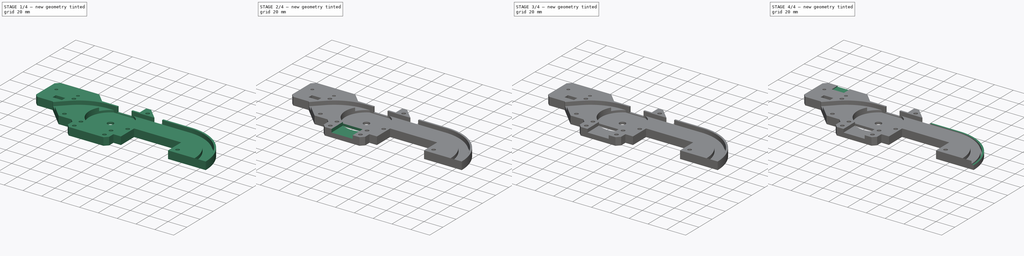
[diagram: build sequence overview — one tinted view per stage of 4, left to right]
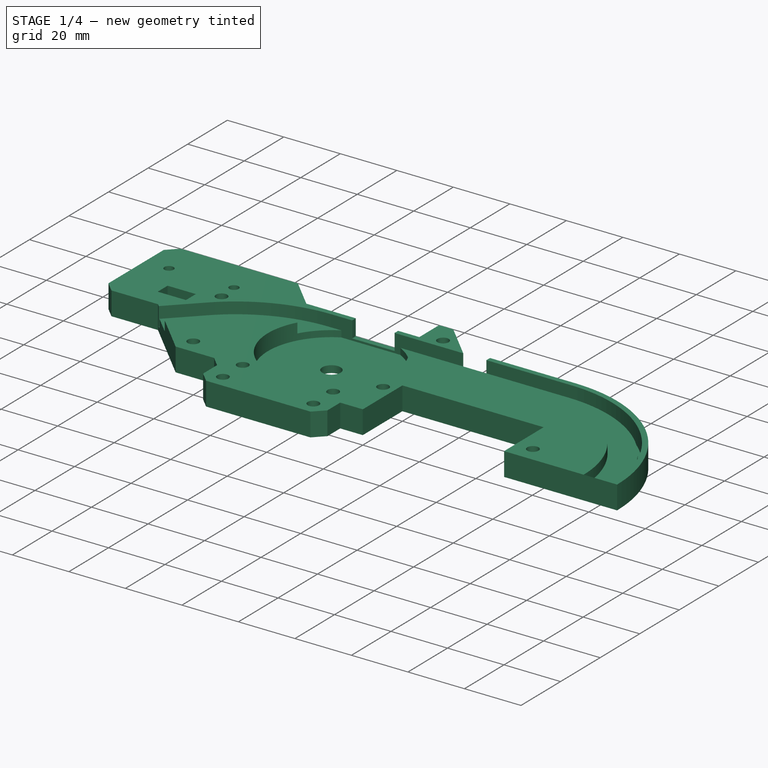
[diagram: stage 1 of 4 — iso view after this stage's code; geometry added in this stage tinted green]
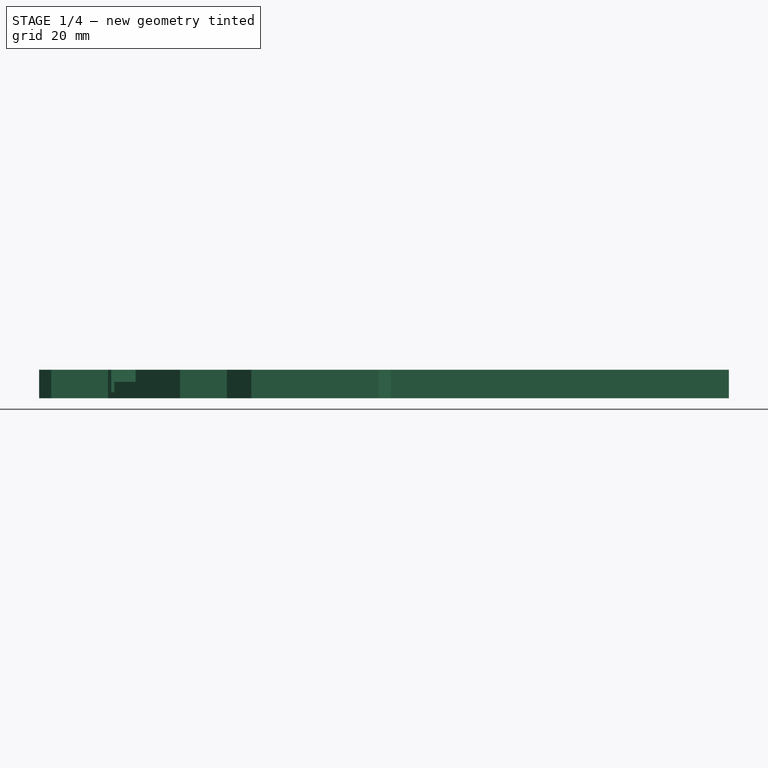
[diagram: stage 1 of 4 — front view after this stage's code; geometry added in this stage tinted green]
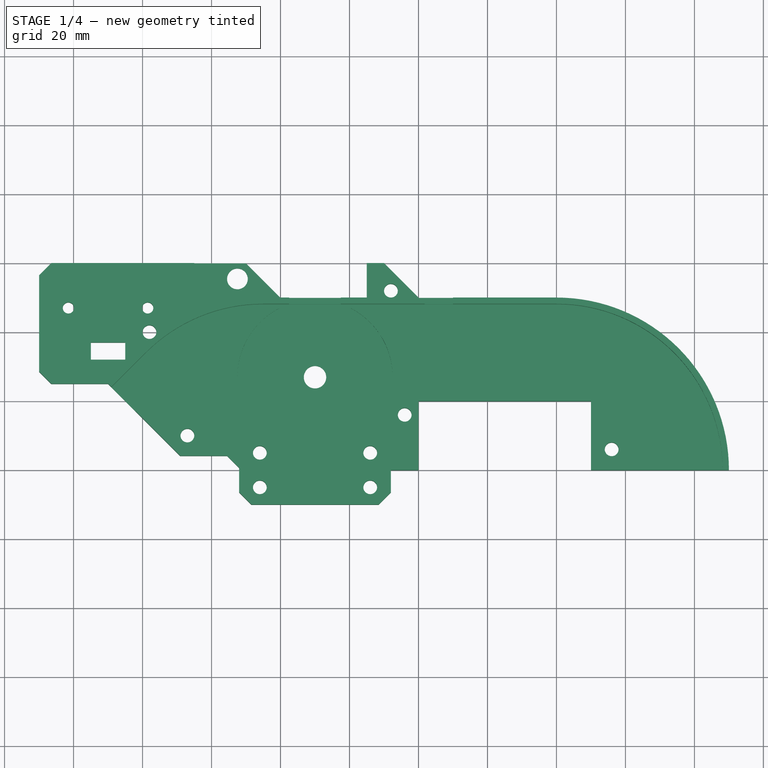
[diagram: stage 1 of 4 — top view after this stage's code; geometry added in this stage tinted green]
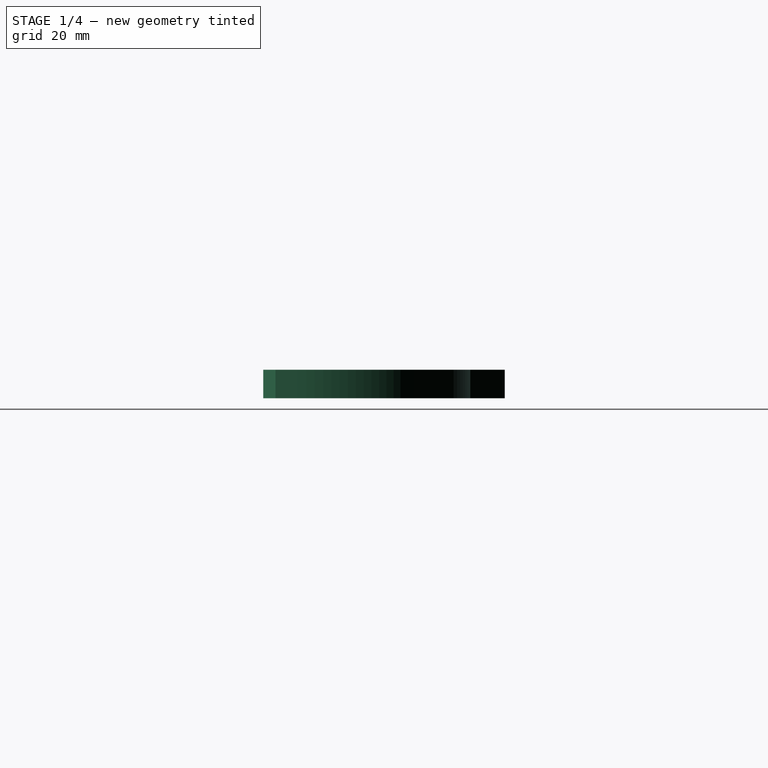
[diagram: stage 1 of 4 — right view after this stage's code; geometry added in this stage tinted green]
FCSTD DOCUMENT  (FreeCAD 0.18.4R)
Label: guide-left
License: All rights reserved
LicenseURL: http://en.wikipedia.org/wiki/All_rights_reserved
objects: Sketcher::SketchObject×9, PartDesign::Pocket×6, PartDesign::Chamfer×3, PartDesign::Plane×2, PartDesign::Pad×1, PartDesign::SubtractivePipe×1, PartDesign::Fillet×1, PartDesign::Body×1
note: 32 computed .brp shape members not serialized (recipe doc carries the construction recipe); baked Part::Feature solids carry a one-line shape summary decoded from their .brp

FEATURE [Sketcher::SketchObject] Sketch
  MapMode = 5
  Support = -> [XY_Plane]
  sketch-geometry (48):
    g0: LineSegment StartX=0 StartY=20 StartZ=0 EndX=50 EndY=20 EndZ=0
    g1: LineSegment StartX=50 StartY=20 StartZ=0 EndX=50 EndY=0 EndZ=0
    g2: LineSegment StartX=50 StartY=0 StartZ=0 EndX=90 EndY=0 EndZ=0
    g3: LineSegment StartX=0 StartY=0 StartZ=0 EndX=-8 EndY=0 EndZ=0
    g4: LineSegment StartX=-8 StartY=0 StartZ=0 EndX=-8 EndY=-6.46447 EndZ=0
    g5: LineSegment StartX=-8 StartY=-6.46447 StartZ=0 EndX=-11.5355 EndY=-10 EndZ=0
    g6: LineSegment StartX=-11.5355 StartY=-10 StartZ=0 EndX=-48.4645 EndY=-10 EndZ=0
    g7: LineSegment StartX=-48.4645 StartY=-10 StartZ=0 EndX=-52 EndY=-6.46447 EndZ=0
    g8: LineSegment StartX=-52 StartY=-6.46447 StartZ=0 EndX=-52 EndY=0.604466 EndZ=0
    g9: LineSegment StartX=-52 StartY=0.604466 StartZ=0 EndX=-55.5355 EndY=4.14 EndZ=0
    g10: LineSegment StartX=-55.5355 StartY=4.14 StartZ=0 EndX=-69.14 EndY=4.14 EndZ=0
    g11: LineSegment StartX=-69.14 StartY=4.14 StartZ=0 EndX=-90 EndY=25 EndZ=0
    g12: LineSegment StartX=-90 StartY=25 StartZ=0 EndX=-106.464 EndY=25 EndZ=0
    g13: LineSegment StartX=-106.464 StartY=25 StartZ=0 EndX=-110 EndY=28.5355 EndZ=0
    g14: LineSegment StartX=-110 StartY=28.5355 StartZ=0 EndX=-110 EndY=56.4645 EndZ=0
    g15: LineSegment StartX=-110 StartY=56.4645 StartZ=0 EndX=-106.464 EndY=60 EndZ=0
    g16: LineSegment StartX=-106.464 StartY=60 StartZ=0 EndX=-50 EndY=60 EndZ=0
    g17: LineSegment StartX=-50 StartY=60 StartZ=0 EndX=-40 EndY=50 EndZ=0
    g18: LineSegment StartX=-40 StartY=50 StartZ=0 EndX=-15 EndY=50 EndZ=0
    g19: LineSegment StartX=-15 StartY=50 StartZ=0 EndX=-15 EndY=60 EndZ=0
    g20: LineSegment StartX=-15 StartY=60 StartZ=0 EndX=-10 EndY=60 EndZ=0
    g21: LineSegment StartX=-10 StartY=60 StartZ=0 EndX=0 EndY=50 EndZ=0
    g22: LineSegment StartX=0 StartY=50 StartZ=0 EndX=40 EndY=50 EndZ=0
    g23: ArcOfCircle CenterX=40 CenterY=0 CenterZ=0 NormalX=0 NormalY=0 NormalZ=1 AngleXU=0 Radius=50 StartAngle=0 EndAngle=1.5708
    g24: Circle CenterX=56 CenterY=6 CenterZ=0 NormalX=0 NormalY=0 NormalZ=1 AngleXU=0 Radius=2
    g25: Circle CenterX=-4 CenterY=16 CenterZ=0 NormalX=0 NormalY=0 NormalZ=1 AngleXU=0 Radius=2
    g26: Circle CenterX=-8 CenterY=52 CenterZ=0 NormalX=0 NormalY=0 NormalZ=1 AngleXU=0 Radius=2
    g27: Circle CenterX=-67 CenterY=10 CenterZ=0 NormalX=0 NormalY=0 NormalZ=1 AngleXU=0 Radius=2
    g28: Circle CenterX=-78 CenterY=40 CenterZ=0 NormalX=0 NormalY=0 NormalZ=1 AngleXU=0 Radius=2
    g29: Circle CenterX=-30 CenterY=27 CenterZ=0 NormalX=0 NormalY=0 NormalZ=1 AngleXU=0 Radius=3.25
    g30: LineSegment [constr] StartX=-30 StartY=27 StartZ=0 EndX=-30 EndY=0 EndZ=0
    g31: LineSegment [constr] StartX=-46 StartY=5 StartZ=0 EndX=-14 EndY=5 EndZ=0
    g32: LineSegment [constr] StartX=-14 StartY=5 StartZ=0 EndX=-14 EndY=-5 EndZ=0
    g33: LineSegment [constr] StartX=-14 StartY=-5 StartZ=0 EndX=-46 EndY=-5 EndZ=0
    g34: LineSegment [constr] StartX=-46 StartY=-5 StartZ=0 EndX=-46 EndY=5 EndZ=0
    g35: Circle CenterX=-46 CenterY=5 CenterZ=0 NormalX=0 NormalY=0 NormalZ=1 AngleXU=0 Radius=2
    g36: Circle CenterX=-46 CenterY=-5 CenterZ=0 NormalX=0 NormalY=0 NormalZ=1 AngleXU=0 Radius=2
    g37: Circle CenterX=-14 CenterY=5 CenterZ=0 NormalX=0 NormalY=0 NormalZ=1 AngleXU=0 Radius=2
    g38: Circle CenterX=-14 CenterY=-5 CenterZ=0 NormalX=0 NormalY=0 NormalZ=1 AngleXU=0 Radius=2
    g39: Circle CenterX=-52.5 CenterY=55.5 CenterZ=0 NormalX=0 NormalY=0 NormalZ=1 AngleXU=0 Radius=3
    g40: Circle CenterX=-101.5 CenterY=47 CenterZ=0 NormalX=0 NormalY=0 NormalZ=1 AngleXU=0 Radius=1.625
    g41: Circle CenterX=-78.5 CenterY=47 CenterZ=0 NormalX=0 NormalY=0 NormalZ=1 AngleXU=0 Radius=1.625
    g42: LineSegment [constr] StartX=-101.5 StartY=47 StartZ=0 EndX=-78.5 EndY=47 EndZ=0
    g43: LineSegment StartX=-95 StartY=37 StartZ=0 EndX=-85 EndY=37 EndZ=0
    g44: LineSegment StartX=-85 StartY=37 StartZ=0 EndX=-85 EndY=32 EndZ=0
    g45: LineSegment StartX=-85 StartY=32 StartZ=0 EndX=-95 EndY=32 EndZ=0
    g46: LineSegment StartX=-95 StartY=32 StartZ=0 EndX=-95 EndY=37 EndZ=0
    g47: LineSegment StartX=0 StartY=0 StartZ=0 EndX=0 EndY=20 EndZ=0
  constraints (137):
    c: PointOnObject(g47,g-2)
    c: Coincident(g47,g0)
    c: Horizontal(g0)
    c: Coincident(g0,g1)
    c: PointOnObject(g1,g-1)
    c: Vertical(g1)
    c: Coincident(g1,g2)
    c: Horizontal(g2)
    c: PointOnObject(g3,g-1)
    c: Coincident(g3,g4)
    c: Vertical(g4)
    c: Coincident(g4,g5)
    c: Coincident(g5,g6)
    c: Horizontal(g6)
    c: Coincident(g6,g7)
    c: Coincident(g7,g8)
    c: Vertical(g8)
    c: Coincident(g8,g9)
    c: Coincident(g9,g10)
    c: Horizontal(g10)
    c: Coincident(g10,g11)
    c: Coincident(g11,g12)
    c: Horizontal(g12)
    c: Coincident(g12,g13)
    c: Coincident(g13,g14)
    c: Vertical(g14)
    c: Coincident(g14,g15)
    c: Coincident(g15,g16)
    c: Horizontal(g16)
    c: Coincident(g16,g17)
    c: Coincident(g17,g18)
    c: Horizontal(g18)
    c: Coincident(g18,g19)
    c: Vertical(g19)
    c: Coincident(g19,g20)
    c: Horizontal(g20)
    c: Coincident(g20,g21)
    c: Coincident(g21,g22)
    c: Horizontal(g22)
    c: Coincident(g23,g22)
    c: Coincident(g23,g2)
    c: Tangent(g23,g22)
    c: DistanceY(g-1,g47) = 20
    c: DistanceX(g-1,g1) = 50
    c: PointOnObject(g23,g2)
    c: DistanceX(g-1,g23) = 40
    c: Diameter(g23) = 100
    c: PointOnObject(g18,g22)
    c: PointOnObject(g21,g-2)
    c: Angle(g22,g21) = 2.35619
    c: DistanceY(g-1,g20) = 60
    c: DistanceY(g-1,g12) = 25
    c: DistanceX(g13,g-1) = 110
    c: Angle(g12,g13) = 2.35619
    c: Distance(g13) = 5
    c: Distance(g15) = 5
    c: Angle(g15,g16) = 2.35619
    c: PointOnObject(g16,g20)
    c: DistanceX(g11,g-1) = 90
    c: DistanceX(g10,g-1) = 69.14
    c: DistanceY(g-1,g10) = 4.14
    c: Distance(g7) = 5
    c: Distance(g5) = 5
    c: Distance(g9) = 5
    c: Angle(g10,g9) = 2.35619
    c: Angle(g7,g8) = 2.35619
    c: Angle(g5,g6) = 2.35619
    c: Diameter(g28) = 4
    c: Diameter(g27) = 4
    c: Diameter(g26) = 4
    c: Diameter(g25) = 4
    c: Diameter(g24) = 4
    c: DistanceX(g28,g-1) = 78
    c: DistanceY(g-1,g28) = 40
    c: DistanceX(g25,g-1) = 4
    c: DistanceY(g-1,g25) = 16
    c: DistanceY(g-1,g24) = 6
    c: DistanceX(g-1,g24) = 56
    c: DistanceX(g26,g-1) = 8
    c: DistanceY(g-1,g26) = 52
    c: DistanceY(g-1,g27) = 10
    c: DistanceX(g27,g-1) = 67
    c: Angle(g16,g17) = 2.35619
    c: DistanceX(g17,g-1) = 40
    c: DistanceY(g-1,g29) = 27
    c: DistanceX(g29,g-1) = 30
    c: Diameter(g29) = 6.5
    c: DistanceY(g5,g-1) = 10
    c: DistanceX(g7,g-1) = 52
    c: DistanceX(g18,g-1) = 15
    c: Coincident(g30,g29)
    c: PointOnObject(g30,g-1)
    c: Symmetric(g7,g4,g30)
    c: Coincident(g31,g32)
    c: Coincident(g32,g33)
    c: Coincident(g33,g34)
    c: Coincident(g34,g31)
    c: Horizontal(g33)
    c: Vertical(g32)
    c: Vertical(g34)
    c: Symmetric(g31,g31,g30)
    c: Coincident(g35,g31)
    c: Coincident(g36,g33)
    c: Coincident(g38,g32)
    c: Coincident(g37,g31)
    c: Diameter(g35) = 4
    c: Diameter(g36) = 4
    c: Diameter(g37) = 4
    c: Diameter(g38) = 4
    c: DistanceX(g31,g31) = 32
    c: DistanceY(g38,g-1) = 5
    c: DistanceY(g-1,g37) = 5
    c: Diameter(g39) = 6
    c: DistanceX(g39,g-1) = 52.5
    c: DistanceY(g-1,g39) = 55.5
    c: Diameter(g40) = 3.25
    c: Diameter(g41) = 3.25
    c: Coincident(g42,g41)
    c: Coincident(g42,g40)
    c: Horizontal(g42)
    c: DistanceX(g42,g42) = 23
    c: DistanceX(g41,g-1) = 78.5
    c: DistanceY(g-1,g41) = 47
    c: Coincident(g43,g44)
    c: Coincident(g44,g45)
    c: Coincident(g45,g46)
    c: Coincident(g46,g43)
    c: Horizontal(g43)
    c: Horizontal(g45)
    c: Vertical(g44)
    c: Vertical(g46)
    c: DistanceX(g43,g43) = 10
    c: DistanceY(g46,g46) = 5
    c: DistanceY(g-1,g44) = 32
    c: DistanceX(g44,g-1) = 85
    c: Coincident(g47,g3)
    c: Coincident(g3,g-1)
FEATURE [PartDesign::Pad] Pad
  Length = 8.25
  Length2 = 100
  Profile = -> Sketch
  Type = 0
FEATURE [PartDesign::Plane] DatumPlane  label="mating-plane"
  Length = 223.664
  MapMode = 5
  Placement = pos=(0,0,8.25) rot=(0,0,1;0rad)
  ResizeMode = 0
  Support = -> [Pad]
  Width = 93.6643
FEATURE [Sketcher::SketchObject] Sketch001  label="loft-line"
  MapMode = 5
  Placement = pos=(0,0,8.25) rot=(0,0,1;0rad)
  Support = -> [DatumPlane]
  sketch-geometry (5):
    g0: LineSegment StartX=-70.9793 StartY=1.95141 StartZ=0 EndX=-58.9654 EndY=13.9654 EndZ=0
    g1: ArcOfCircle CenterX=-45 CenterY=0 CenterZ=0 NormalX=0 NormalY=0 NormalZ=1 AngleXU=0 Radius=19.75 StartAngle=1.5708 EndAngle=2.35619
    g2: LineSegment StartX=-45 StartY=19.75 StartZ=0 EndX=40 EndY=19.75 EndZ=0
    g3: ArcOfCircle CenterX=40 CenterY=0 CenterZ=0 NormalX=0 NormalY=0 NormalZ=1 AngleXU=0 Radius=19.75 StartAngle=0 EndAngle=1.5708
    g4: LineSegment StartX=59.75 StartY=0 StartZ=0 EndX=59.75 EndY=-3.40695 EndZ=0
  constraints (16):
    c: Coincident(g1,g0)
    c: Coincident(g2,g1)
    c: Horizontal(g2)
    c: Coincident(g3,g2)
    c: Tangent(g2,g3)
    c: Tangent(g1,g2)
    c: Tangent(g1,g0)
    c: PointOnObject(g3,g-1)
    c: Diameter(g3) = 39.5
    c: DistanceX(g-1,g3) = 40
    c: PointOnObject(g3,g-1)
    c: DistanceX(g1,g-1) = 45
    c: PointOnObject(g1,g-1)
    c: Angle(g0,g2) = 2.35619
    c: Coincident(g4,g3)
    c: Vertical(g4)
FEATURE [PartDesign::Plane] DatumPlane001  label="tape-entry"
  Length = 77.4833
  MapMode = 5
  Placement = pos=(-85,0,0) rot=(0.57735,-0.57735,-0.57735;2.0944rad)
  ResizeMode = 0
  Support = -> [Pad]
  Width = 27.4833
FEATURE [Sketcher::SketchObject] Sketch002
  MapMode = 5
  Placement = pos=(-32.5,-32.5,0) rot=(0.862856,-0.357407,-0.357407;1.71777rad)
  Support = -> [Pad]
  sketch-geometry (6):
    g0: LineSegment StartX=-80 StartY=8.25 StartZ=0 EndX=-80 EndY=1.75 EndZ=0
    g1: LineSegment StartX=-80 StartY=1.75 StartZ=0 EndX=-78.75 EndY=1.75 EndZ=0
    g2: LineSegment StartX=-78.75 StartY=1.75 StartZ=0 EndX=-78.75 EndY=4.75 EndZ=0
    g3: LineSegment StartX=-78.75 StartY=4.75 StartZ=0 EndX=-70 EndY=4.75 EndZ=0
    g4: LineSegment StartX=-70 StartY=4.75 StartZ=0 EndX=-70 EndY=8.25 EndZ=0
    g5: LineSegment StartX=-70 StartY=8.25 StartZ=0 EndX=-80 EndY=8.25 EndZ=0
  constraints (18):
    c: Vertical(g0)
    c: Coincident(g0,g1)
    c: Horizontal(g1)
    c: Coincident(g1,g2)
    c: Vertical(g2)
    c: Coincident(g2,g3)
    c: Horizontal(g3)
    c: Coincident(g3,g4)
    c: Vertical(g4)
    c: Coincident(g4,g5)
    c: Coincident(g5,g0)
    c: Horizontal(g5)
    c: DistanceY(g-1,g4) = 8.25
    c: DistanceX(g0,g1) = 1.25
    c: DistanceX(g0,g-1) = 80
    c: DistanceY(g4,g4) = 3.5
    c: DistanceY(g-1,g1) = 1.75
    c: DistanceX(g5,g5) = 10
FEATURE [PartDesign::SubtractivePipe] SubtractivePipe
  AuxilleryCurvelinear = true
  AuxillerySpineTangent = false
  BaseFeature = -> Pad
  Binormal = (0,0,0)
  Mode = 0
  Profile = -> Sketch002
  Spine = -> Sketch001 [Edge1,Edge2,Edge3,Edge4]
  SpineTangent = false
  Transformation = 0
  Transition = 0
FEATURE [Sketcher::SketchObject] Sketch003
  MapMode = 5
  Placement = pos=(0,0,8.25) rot=(0,0,1;0rad)
  Support = -> [DatumPlane]
  sketch-geometry (13):
    g0: ArcOfCircle CenterX=-30 CenterY=27 CenterZ=0 NormalX=0 NormalY=0 NormalZ=1 AngleXU=0 Radius=22.5 StartAngle=1.91063 EndAngle=7.51414
    g1: Circle [constr] CenterX=-30 CenterY=27 CenterZ=0 NormalX=0 NormalY=0 NormalZ=1 AngleXU=0 Radius=20
    g2: LineSegment StartX=-37.5 StartY=48.2132 StartZ=0 EndX=-37.5 EndY=50.2132 EndZ=0
    g3: LineSegment StartX=-37.5 StartY=50.2132 StartZ=0 EndX=-22.5 EndY=50.2132 EndZ=0
    g4: LineSegment StartX=-22.5 StartY=50.2132 StartZ=0 EndX=-22.5 EndY=48.2132 EndZ=0
    g5: LineSegment StartX=0 StartY=50 StartZ=0 EndX=2 EndY=48 EndZ=0
    g6: LineSegment StartX=2 StartY=48 StartZ=0 EndX=10 EndY=48 EndZ=0
    g7: LineSegment StartX=10 StartY=48 StartZ=0 EndX=10 EndY=50 EndZ=0
    g8: LineSegment StartX=10 StartY=50 StartZ=0 EndX=0 EndY=50 EndZ=0
    g9: LineSegment StartX=-40 StartY=50 StartZ=0 EndX=-55 EndY=50 EndZ=0
    g10: LineSegment StartX=-55 StartY=50 StartZ=0 EndX=-65 EndY=60 EndZ=0
    g11: LineSegment StartX=-65 StartY=60 StartZ=0 EndX=-50 EndY=60 EndZ=0
    g12: LineSegment StartX=-50 StartY=60 StartZ=0 EndX=-40 EndY=50 EndZ=0
  constraints (39):
    c: Diameter(g0) = 45
    c: DistanceX(g0,g-1) = 30
    c: Coincident(g1,g0)
    c: Diameter(g1) = 40
    c: DistanceY(g-1,g0) = 27
    c: Vertical(g2)
    c: Coincident(g2,g3)
    c: Horizontal(g3)
    c: Coincident(g3,g4)
    c: Vertical(g4)
    c: Coincident(g0,g2)
    c: Coincident(g0,g4)
    c: DistanceX(g0,g-1) = 22.5
    c: DistanceX(g0,g-1) = 37.5
    c: DistanceY(g4,g4) = 2
    c: PointOnObject(g5,g-2)
    c: Coincident(g5,g6)
    c: Horizontal(g6)
    c: Coincident(g6,g7)
    c: Coincident(g7,g8)
    c: Coincident(g8,g5)
    c: Horizontal(g8)
    c: Vertical(g7)
    c: DistanceX(g-1,g6) = 10
    c: DistanceY(g-1,g5) = 50
    c: DistanceY(g-1,g6) = 48
    c: Angle(g5,g8) = 0.785398
    c: Horizontal(g9)
    c: Coincident(g9,g10)
    c: Coincident(g10,g11)
    c: Horizontal(g11)
    c: Coincident(g11,g12)
    c: Coincident(g12,g9)
    c: DistanceX(g9,g-1) = 40
    c: DistanceX(g11,g-1) = 50
    c: DistanceX(g11,g11) = 15
    c: Angle(g10,g11) = 0.785398
    c: DistanceY(g-1,g9) = 50
    c: DistanceY(g-1,g11) = 60
FEATURE [PartDesign::Pocket] Pocket
  BaseFeature = -> SubtractivePipe
  Length = 5.75
  Length2 = 100
  Profile = -> Sketch003
  Type = 0
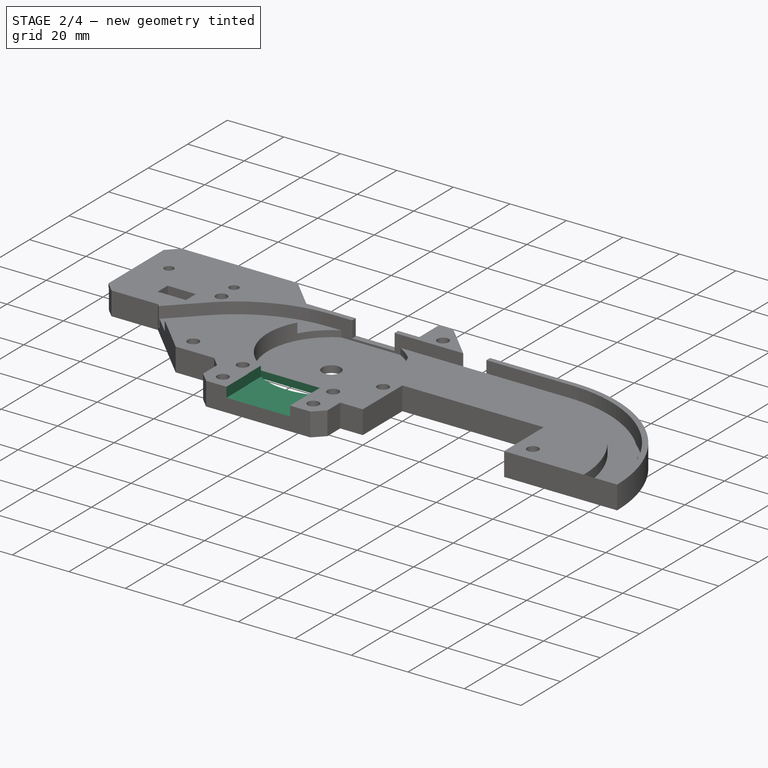
[diagram: stage 2 of 4 — iso view after this stage's code; geometry added in this stage tinted green]
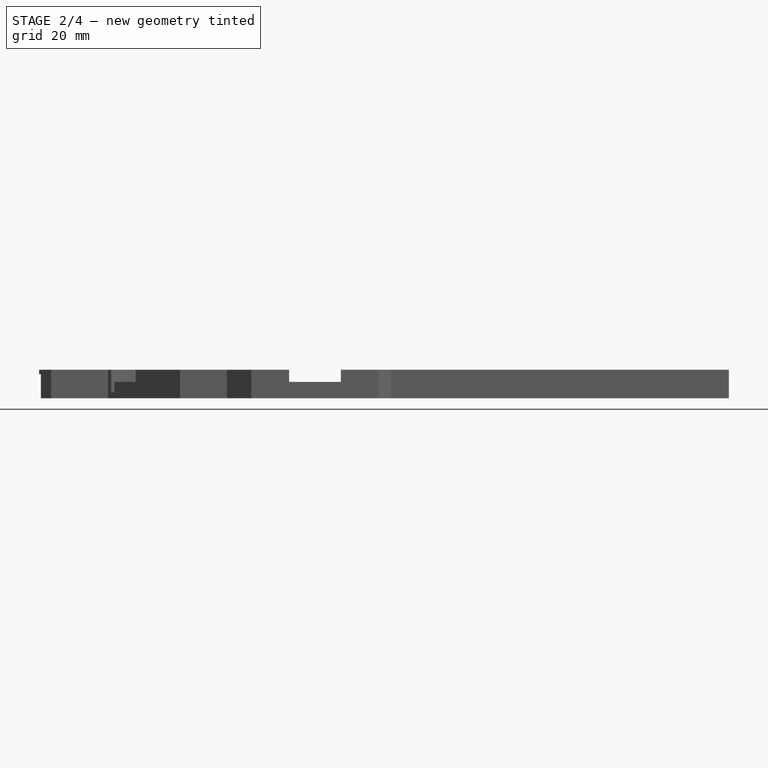
[diagram: stage 2 of 4 — front view after this stage's code; geometry added in this stage tinted green]
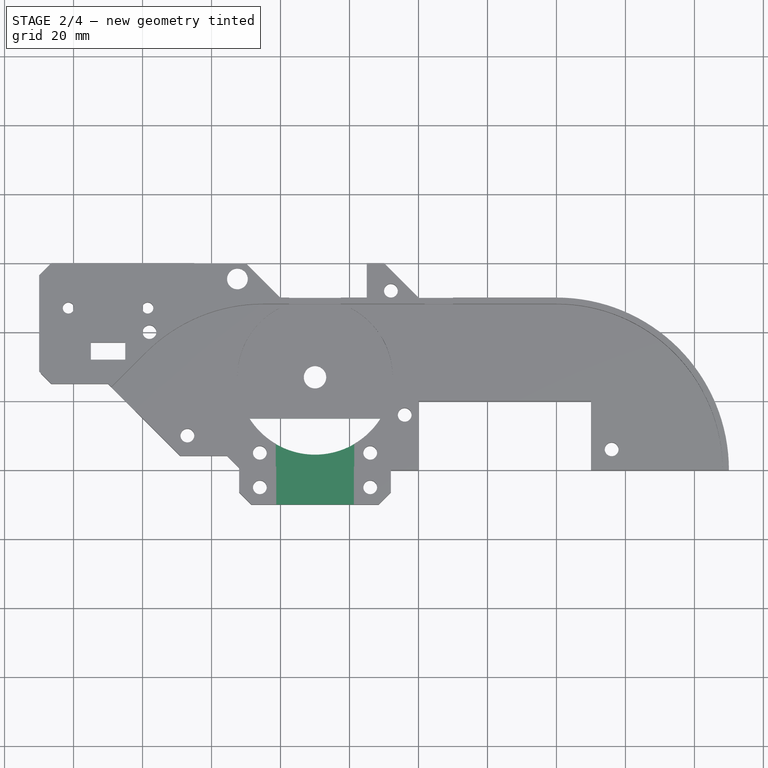
[diagram: stage 2 of 4 — top view after this stage's code; geometry added in this stage tinted green]
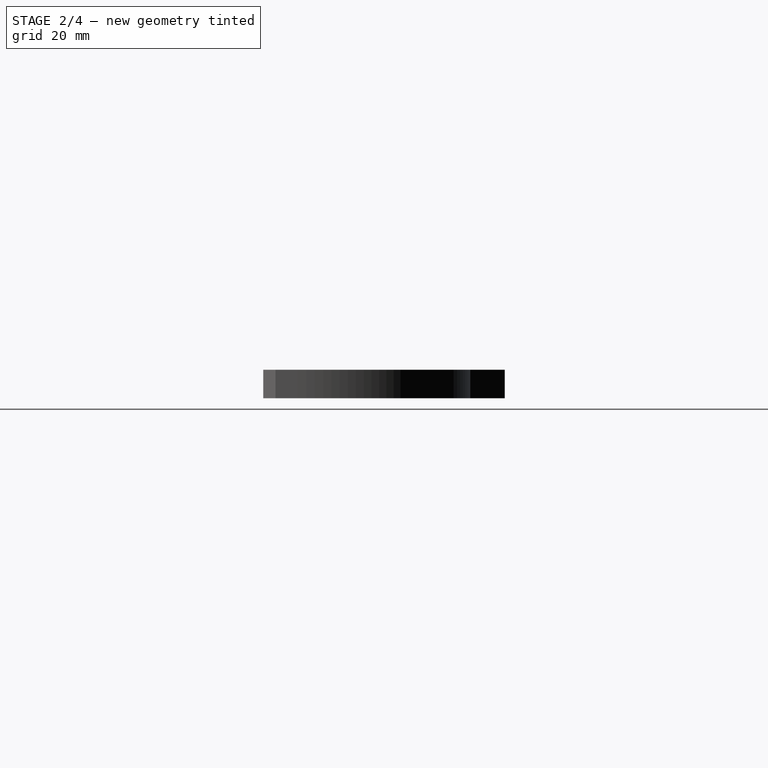
[diagram: stage 2 of 4 — right view after this stage's code; geometry added in this stage tinted green]
FEATURE [Sketcher::SketchObject] Sketch004
  MapMode = 5
  Placement = pos=(0,0,8.25) rot=(0,0,1;0rad)
  Support = -> [DatumPlane]
  sketch-geometry (2):
    g0: ArcOfCircle CenterX=-30 CenterY=27 CenterZ=0 NormalX=0 NormalY=0 NormalZ=1 AngleXU=0 Radius=22.5 StartAngle=3.70413 EndAngle=5.72065
    g1: LineSegment StartX=-49.0329 StartY=15 StartZ=0 EndX=-10.9671 EndY=15 EndZ=0
  constraints (7):
    c: Coincident(g1,g0)
    c: Coincident(g1,g0)
    c: Horizontal(g1)
    c: DistanceX(g0,g-1) = 30
    c: DistanceY(g-1,g0) = 27
    c: Diameter(g0) = 45
    c: DistanceY(g-1,g0) = 15
FEATURE [PartDesign::Pocket] Pocket001
  BaseFeature = -> Pocket
  Length = 8.5
  Length2 = 100
  Profile = -> Sketch004
  Type = 0
FEATURE [Sketcher::SketchObject] Sketch005
  MapMode = 5
  Placement = pos=(0,0,8.25) rot=(0,0,1;0rad)
  Support = -> [DatumPlane]
  sketch-geometry (9):
    g0: LineSegment [constr] StartX=-30 StartY=0 StartZ=0 EndX=-30 EndY=-40 EndZ=0
    g1: LineSegment StartX=-41.375 StartY=10 StartZ=0 EndX=-18.625 EndY=10 EndZ=0
    g2: LineSegment StartX=-18.625 StartY=10 StartZ=0 EndX=-18.625 EndY=1 EndZ=0
    g3: LineSegment StartX=-41.375 StartY=1 StartZ=0 EndX=-41.375 EndY=10 EndZ=0
    g4: LineSegment StartX=-41.375 StartY=1 StartZ=0 EndX=-41.25 EndY=1 EndZ=0
    g5: LineSegment StartX=-41.25 StartY=1 StartZ=0 EndX=-41.25 EndY=-10 EndZ=0
    g6: LineSegment StartX=-41.25 StartY=-10 StartZ=0 EndX=-18.75 EndY=-10 EndZ=0
    g7: LineSegment StartX=-18.75 StartY=-10 StartZ=0 EndX=-18.75 EndY=1 EndZ=0
    g8: LineSegment StartX=-18.75 StartY=1 StartZ=0 EndX=-18.625 EndY=1 EndZ=0
  constraints (26):
    c: PointOnObject(g0,g-1)
    c: Vertical(g0)
    c: DistanceX(g0,g-1) = 30
    c: DistanceY(g0,g0) = 40
    c: Coincident(g1,g2)
    c: Coincident(g3,g1)
    c: Vertical(g2)
    c: Vertical(g3)
    c: Coincident(g3,g4)
    c: Coincident(g4,g5)
    c: Vertical(g5)
    c: Coincident(g5,g6)
    c: Coincident(g6,g7)
    c: Vertical(g7)
    c: Coincident(g7,g8)
    c: Coincident(g8,g2)
    c: Symmetric(g1,g1,g0)
    c: DistanceX(g1,g1) = 22.75
    c: DistanceX(g6,g6) = 22.5
    c: Symmetric(g5,g6,g0)
    c: Horizontal(g4)
    c: Horizontal(g8)
    c: PointOnObject(g4,g8)
    c: DistanceY(g-1,g2) = 1
    c: DistanceY(g6,g-1) = 10
    c: DistanceY(g-1,g1) = 10
FEATURE [PartDesign::Pocket] Pocket002
  BaseFeature = -> Pocket001
  Length = 3.5
  Length2 = 100
  Profile = -> Sketch005
  Type = 0
FEATURE [Sketcher::SketchObject] Sketch006
  MapMode = 5
  Support = -> [XY_Plane]
  sketch-geometry (8):
    g0: LineSegment StartX=-110 StartY=57 StartZ=0 EndX=-105 EndY=57 EndZ=0
    g1: LineSegment StartX=-105 StartY=57 StartZ=0 EndX=-105 EndY=28 EndZ=0
    g2: LineSegment StartX=-105 StartY=28 StartZ=0 EndX=-110 EndY=28 EndZ=0
    g3: LineSegment StartX=-110 StartY=28 StartZ=0 EndX=-110 EndY=57 EndZ=0
    g4: LineSegment StartX=-104.5 StartY=60 StartZ=0 EndX=-88 EndY=60 EndZ=0
    g5: LineSegment StartX=-88 StartY=60 StartZ=0 EndX=-88 EndY=54 EndZ=0
    g6: LineSegment StartX=-88 StartY=54 StartZ=0 EndX=-104.5 EndY=54 EndZ=0
    g7: LineSegment StartX=-104.5 StartY=54 StartZ=0 EndX=-104.5 EndY=60 EndZ=0
  constraints (24):
    c: Coincident(g0,g1)
    c: Coincident(g1,g2)
    c: Coincident(g2,g3)
    c: Coincident(g3,g0)
    c: Horizontal(g0)
    c: Horizontal(g2)
    c: Vertical(g1)
    c: Vertical(g3)
    c: DistanceX(g0,g0) = 5
    c: DistanceX(g2,g-1) = 110
    c: DistanceY(g3,g3) = 29
    c: DistanceY(g-1,g2) = 28
    c: Coincident(g4,g5)
    c: Coincident(g5,g6)
    c: Coincident(g6,g7)
    c: Coincident(g7,g4)
    c: Horizontal(g4)
    c: Horizontal(g6)
    c: Vertical(g5)
    c: Vertical(g7)
    c: DistanceX(g5,g-1) = 88
    c: DistanceX(g6,g-1) = 104.5
    c: DistanceY(g7,g7) = 6
    c: DistanceY(g-1,g4) = 60
FEATURE [PartDesign::Pocket] Pocket003
  BaseFeature = -> Pocket002
  Length = 7
  Length2 = 100
  Profile = -> Sketch006
  Reversed = true
  Type = 0
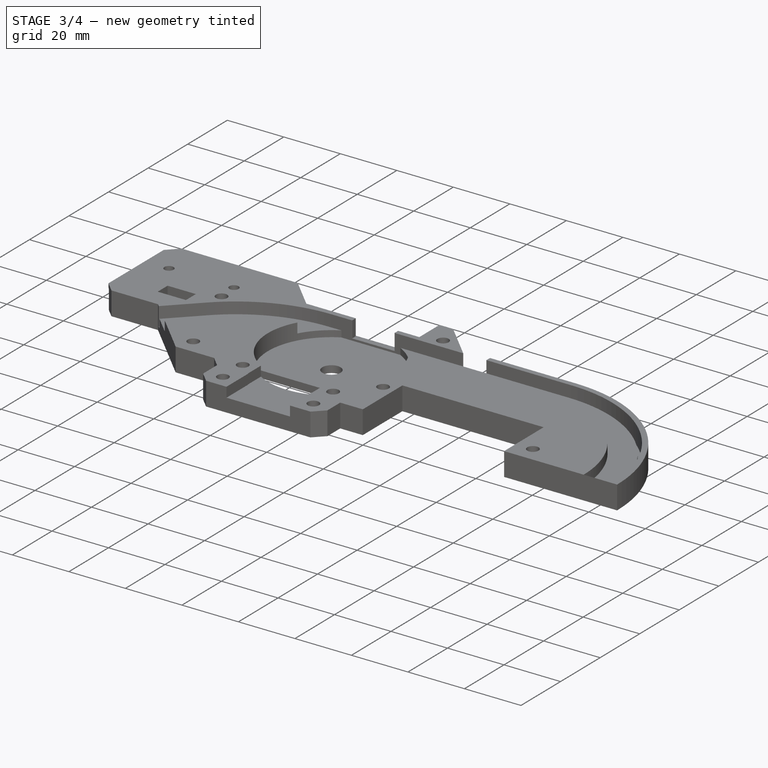
[diagram: stage 3 of 4 — iso view after this stage's code; geometry added in this stage tinted green]
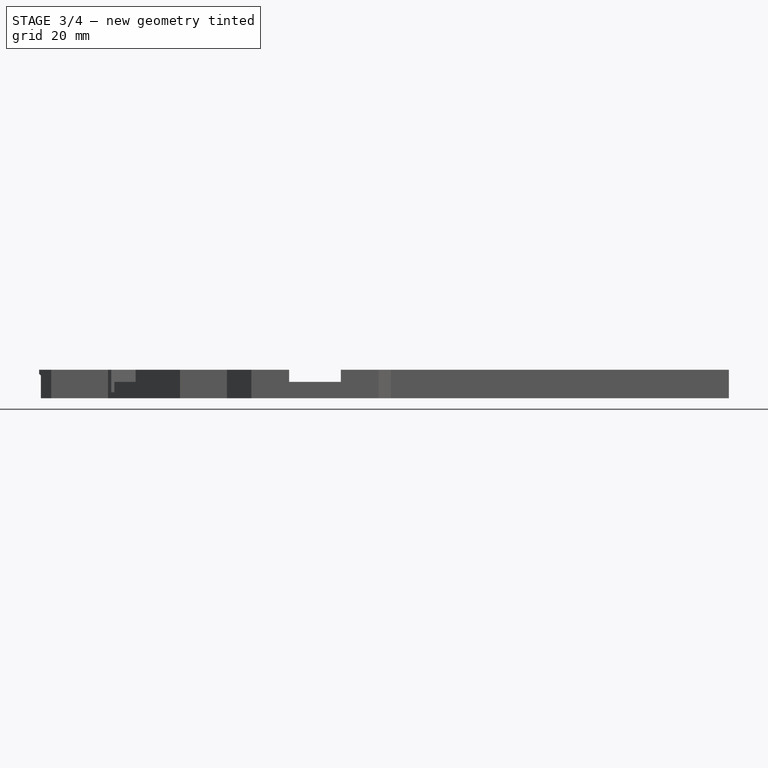
[diagram: stage 3 of 4 — front view after this stage's code; geometry added in this stage tinted green]
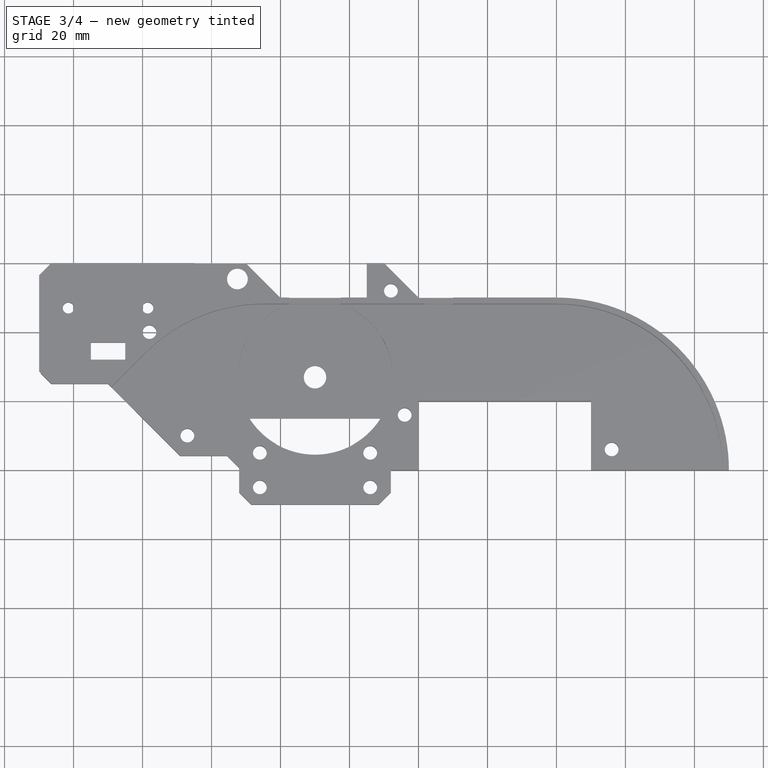
[diagram: stage 3 of 4 — top view after this stage's code; geometry added in this stage tinted green]
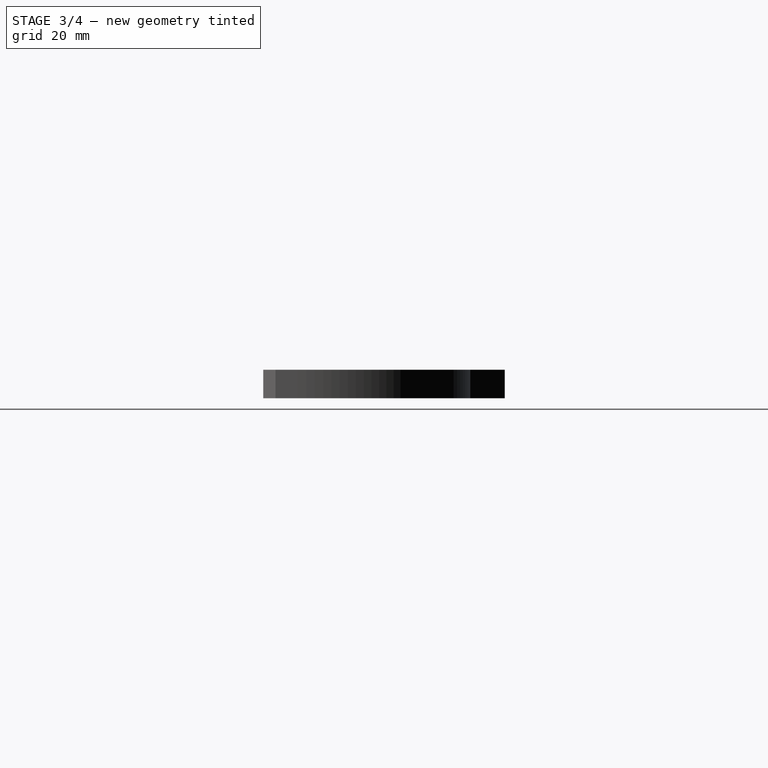
[diagram: stage 3 of 4 — right view after this stage's code; geometry added in this stage tinted green]
FEATURE [PartDesign::Chamfer] Chamfer  label="button-reliefs"
  Base = -> Pocket003 [Edge130,Edge113]
  BaseFeature = -> Pocket003
  Size = 4.9
FEATURE [PartDesign::Chamfer] Chamfer001
  Base = -> Chamfer [Edge49]
  BaseFeature = -> Chamfer
  Size = 4
FEATURE [PartDesign::Fillet] Fillet
  Base = -> Chamfer001 [Edge57]
  BaseFeature = -> Chamfer001
  Radius = 10
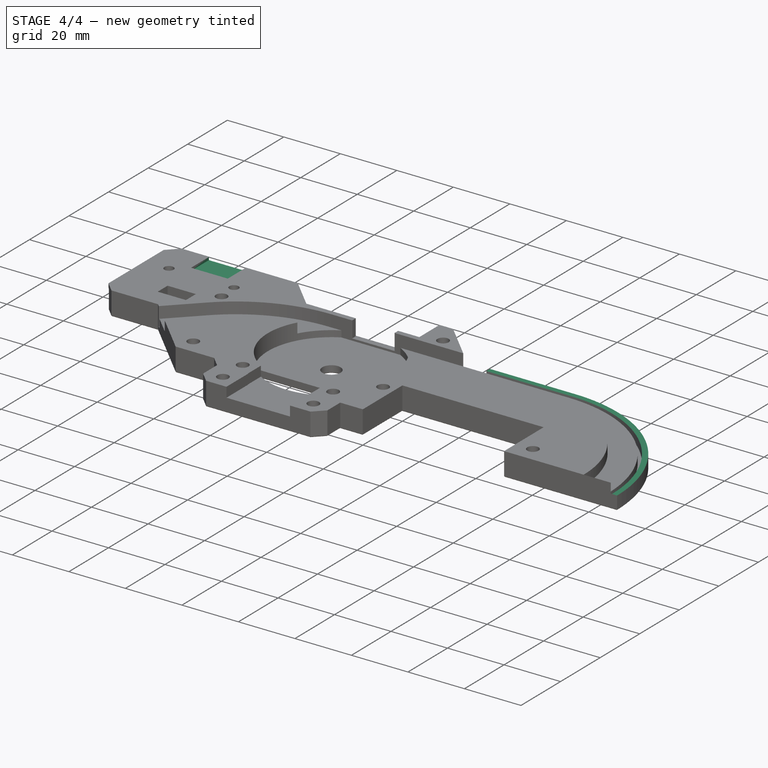
[diagram: stage 4 of 4 — iso view after this stage's code; geometry added in this stage tinted green]
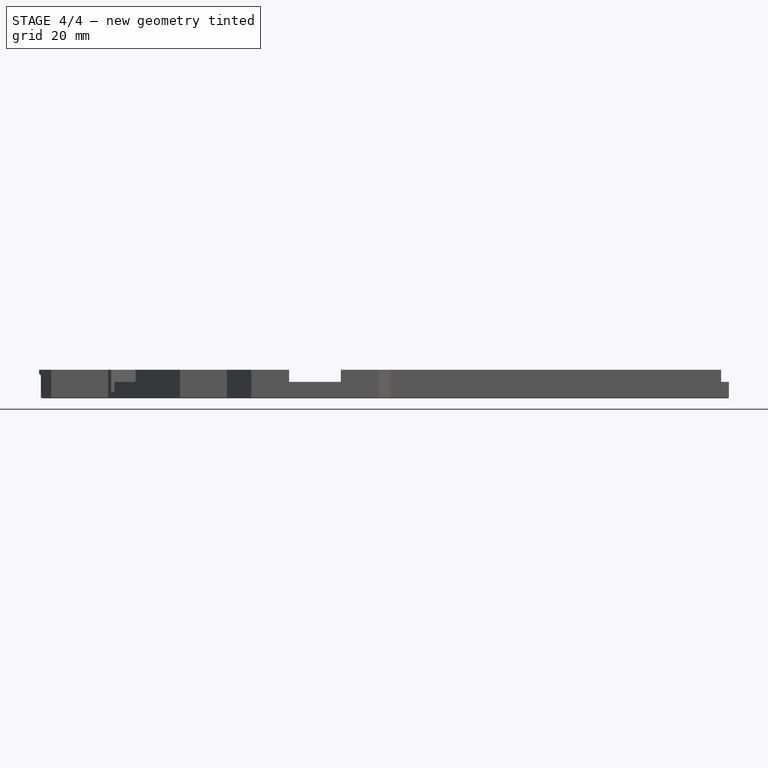
[diagram: stage 4 of 4 — front view after this stage's code; geometry added in this stage tinted green]
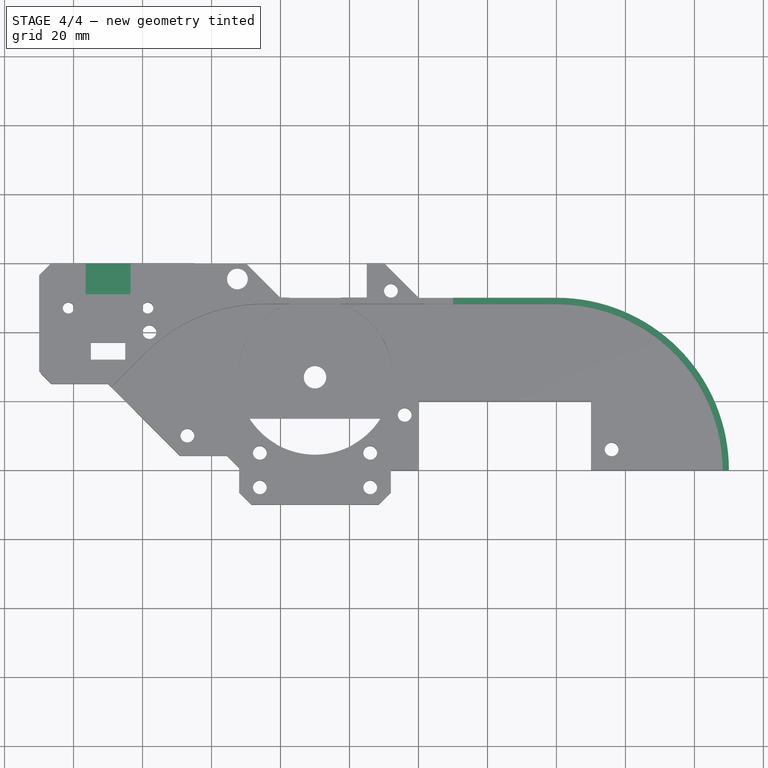
[diagram: stage 4 of 4 — top view after this stage's code; geometry added in this stage tinted green]
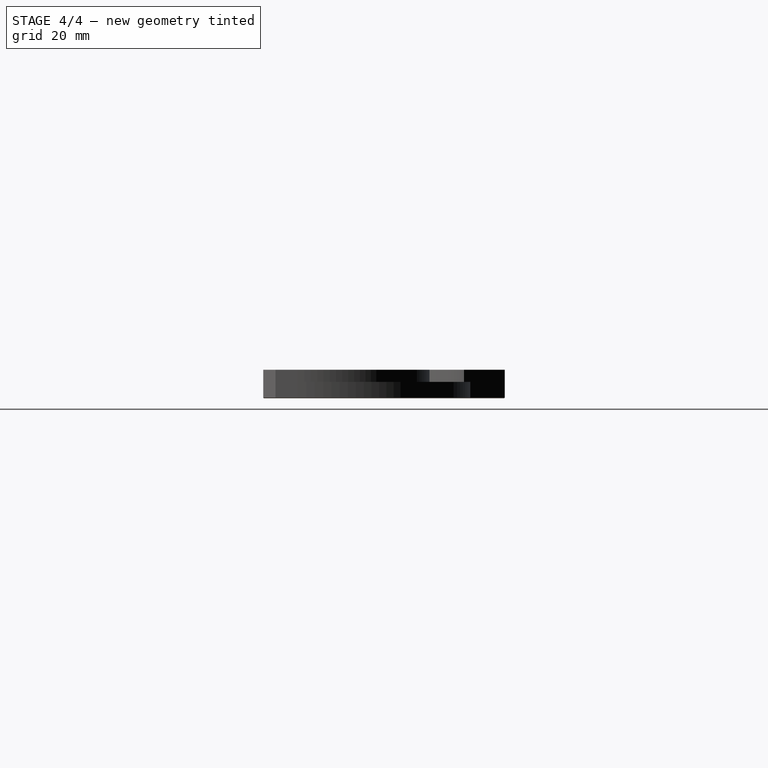
[diagram: stage 4 of 4 — right view after this stage's code; geometry added in this stage tinted green]
FEATURE [Sketcher::SketchObject] Sketch007
  MapMode = 5
  Placement = pos=(0,0,8.25) rot=(0,0,1;0rad)
  Support = -> [DatumPlane]
  sketch-geometry (6):
    g0: ArcOfCircle CenterX=40 CenterY=0 CenterZ=0 NormalX=0 NormalY=0 NormalZ=1 AngleXU=0 Radius=47.75 StartAngle=6.26224 EndAngle=7.85398
    g1: ArcOfCircle CenterX=40 CenterY=0 CenterZ=0 NormalX=0 NormalY=0 NormalZ=1 AngleXU=0 Radius=50.25 StartAngle=6.26328 EndAngle=7.85398
    g2: LineSegment StartX=87.7395 StartY=-1 StartZ=0 EndX=90.24 EndY=-1 EndZ=0
    g3: LineSegment StartX=40 StartY=50.25 StartZ=0 EndX=9.5 EndY=50.25 EndZ=0
    g4: LineSegment StartX=9.5 StartY=50.25 StartZ=0 EndX=9.5 EndY=47.75 EndZ=0
    g5: LineSegment StartX=9.5 StartY=47.75 StartZ=0 EndX=40 EndY=47.75 EndZ=0
  constraints (18):
    c: PointOnObject(g0,g-1)
    c: Coincident(g1,g0)
    c: Coincident(g2,g0)
    c: Coincident(g2,g1)
    c: Tangent(g1,g3) = -1.5708
    c: Coincident(g3,g4)
    c: Vertical(g4)
    c: Coincident(g4,g5)
    c: Coincident(g5,g0)
    c: Horizontal(g3)
    c: Horizontal(g5)
    c: Tangent(g0,g5)
    c: DistanceX(g-1,g0) = 40
    c: Diameter(g0) = 95.5
    c: Diameter(g1) = 100.5
    c: DistanceX(g-1,g4) = 9.5
    c: Horizontal(g2)
    c: DistanceY(g0,g-1) = 1
FEATURE [PartDesign::Pocket] Pocket004
  BaseFeature = -> Fillet
  Length = 3.5
  Length2 = 100
  Profile = -> Sketch007
  Type = 0
FEATURE [Sketcher::SketchObject] Sketch008
  MapMode = 5
  Placement = pos=(0,0,8.25) rot=(0,0,1;0rad)
  Support = -> [DatumPlane]
  sketch-geometry (4):
    g0: LineSegment StartX=-96.5 StartY=60 StartZ=0 EndX=-83.5 EndY=60 EndZ=0
    g1: LineSegment StartX=-83.5 StartY=60 StartZ=0 EndX=-83.5 EndY=51 EndZ=0
    g2: LineSegment StartX=-83.5 StartY=51 StartZ=0 EndX=-96.5 EndY=51 EndZ=0
    g3: LineSegment StartX=-96.5 StartY=51 StartZ=0 EndX=-96.5 EndY=60 EndZ=0
  constraints (12):
    c: Coincident(g0,g1)
    c: Coincident(g1,g2)
    c: Coincident(g2,g3)
    c: Coincident(g3,g0)
    c: Horizontal(g0)
    c: Horizontal(g2)
    c: Vertical(g1)
    c: Vertical(g3)
    c: DistanceX(g0,g0) = 13
    c: DistanceY(g3,g3) = 9
    c: DistanceX(g1,g-1) = 83.5
    c: DistanceY(g-1,g0) = 60
FEATURE [PartDesign::Pocket] Pocket005
  BaseFeature = -> Pocket004
  Length = 1
  Length2 = 100
  Profile = -> Sketch008
  Type = 0
FEATURE [PartDesign::Chamfer] Chamfer002
  Base = -> Pocket005 [Face28]
  BaseFeature = -> Pocket005
  Size = 0.2
FEATURE [PartDesign::Body] Body
  Group = -> [Sketch,Pad,DatumPlane,Sketch001,DatumPlane001,Sketch002,SubtractivePipe,Sketch003,Pocket,Sketch004,Pocket001,Sketch005,Pocket002,Sketch006,Pocket003,Chamfer,Chamfer001,Fillet,Sketch007,Pocket004,Sketch008,Pocket005,Chamfer002]
  Origin = -> Origin
  Tip = -> Chamfer002
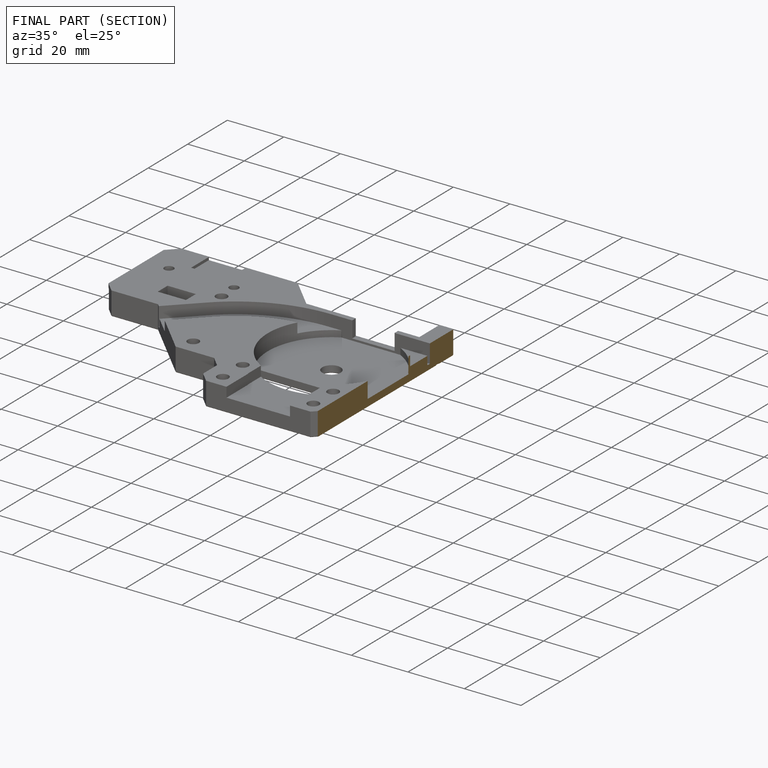
[diagram: finished part — half-section view (interior)]
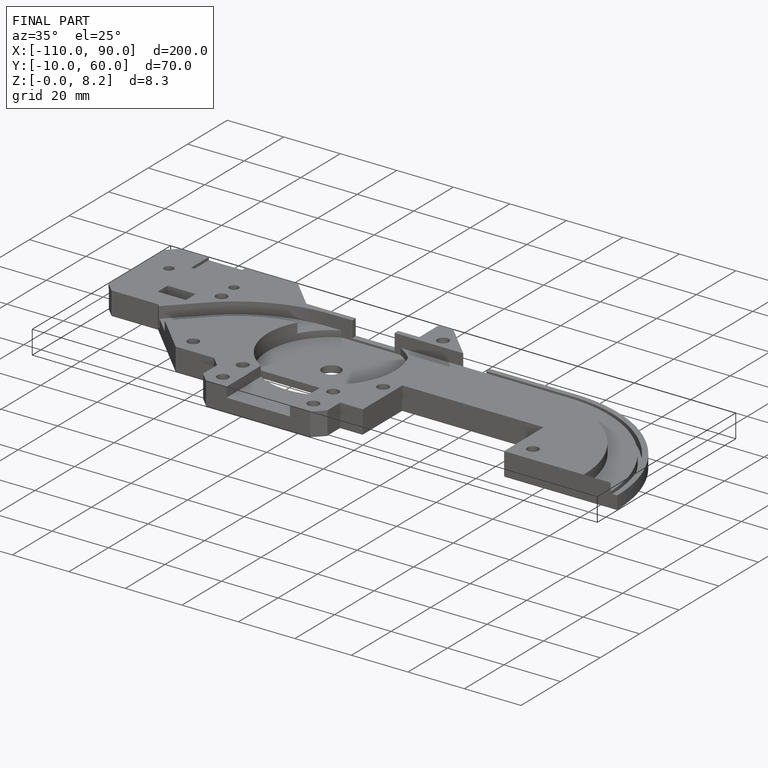
[diagram: finished part — iso view with bounding-box wireframe]
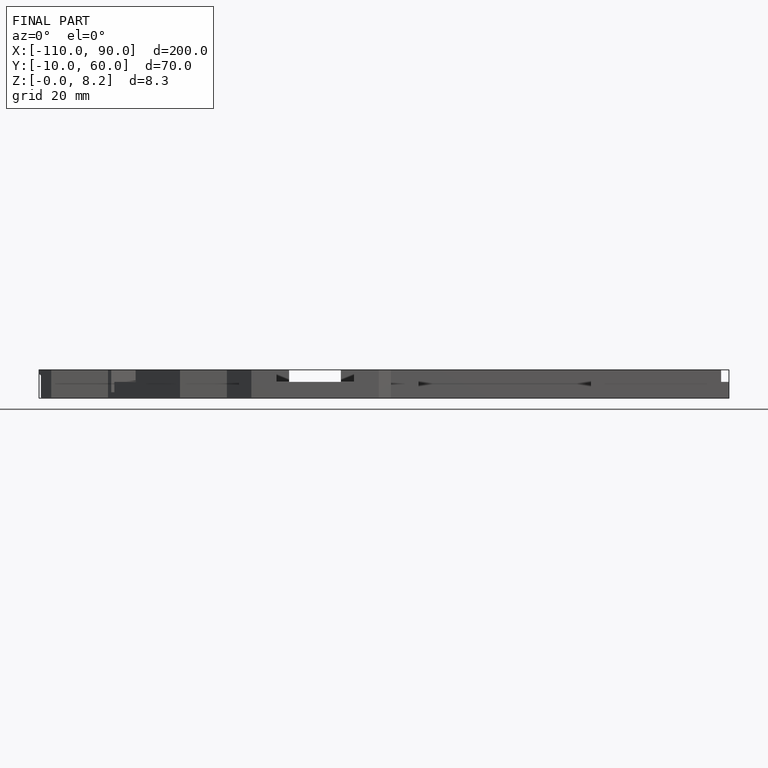
[diagram: finished part — front view with bounding-box wireframe]
